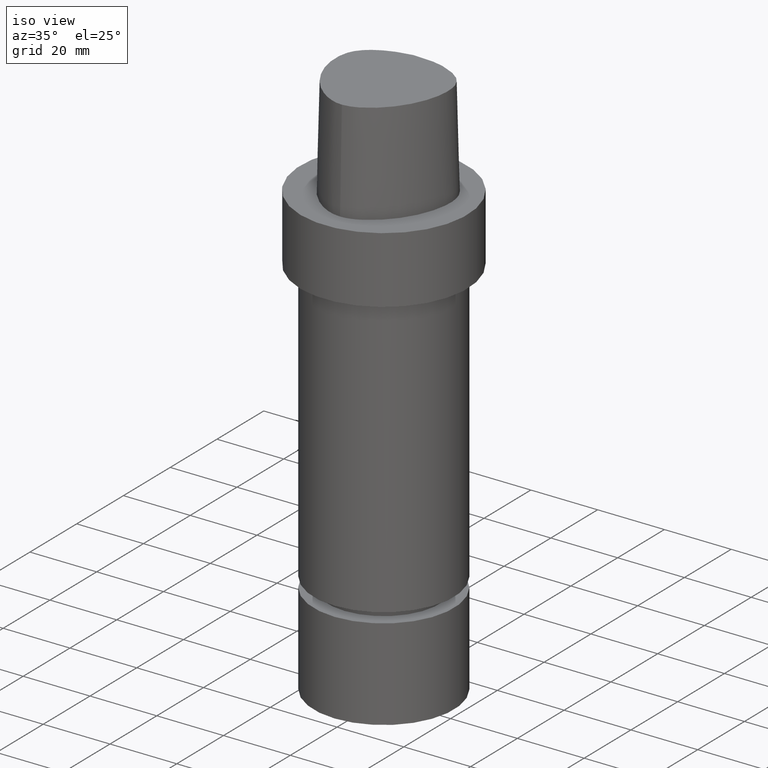
[diagram: clean part render]
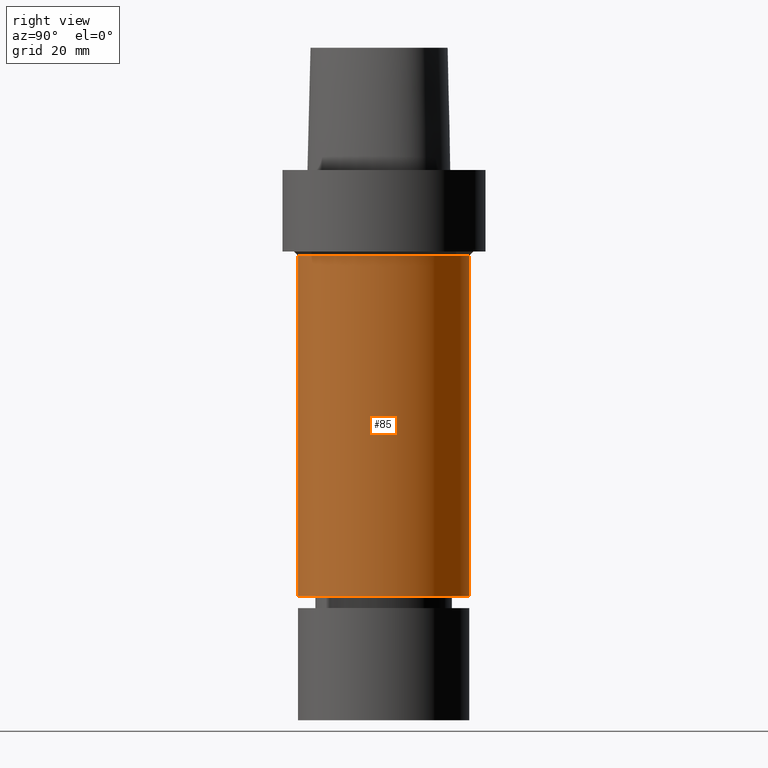
[diagram: tour spotlight — one face highlighted and labeled with its STEP entity id]
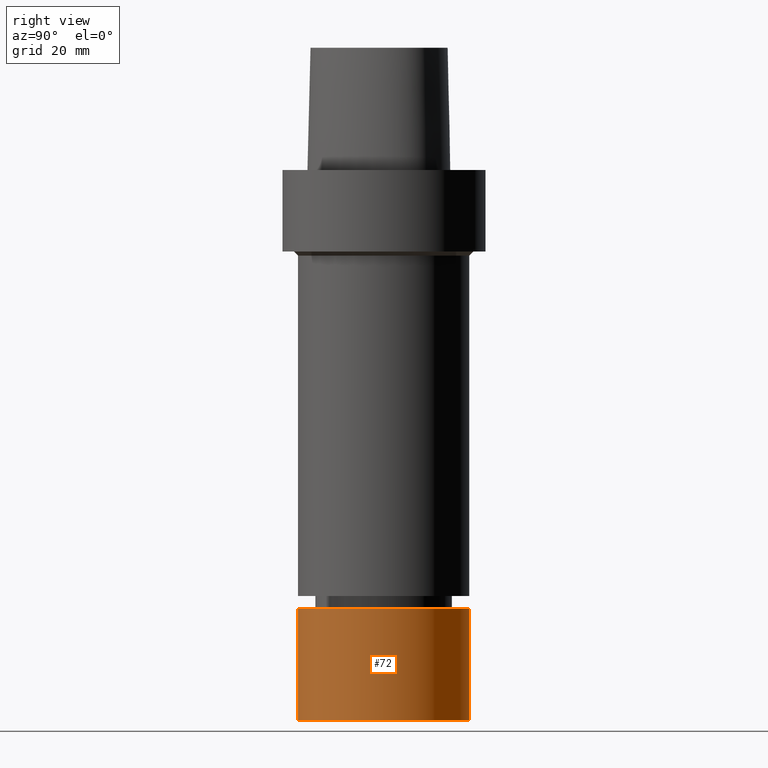
[diagram: tour spotlight — one face highlighted and labeled with its STEP entity id]
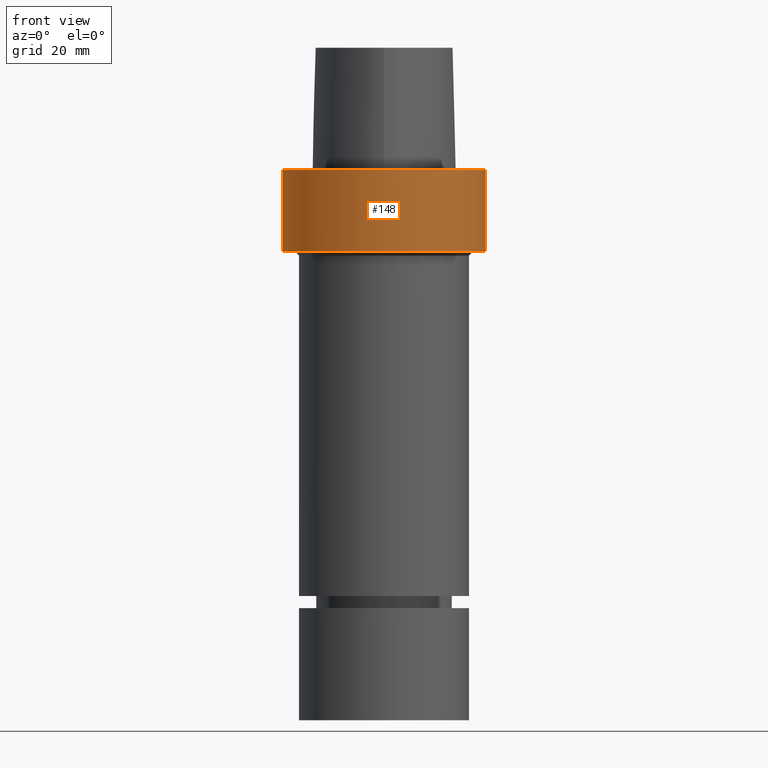
[diagram: tour spotlight — one face highlighted and labeled with its STEP entity id]
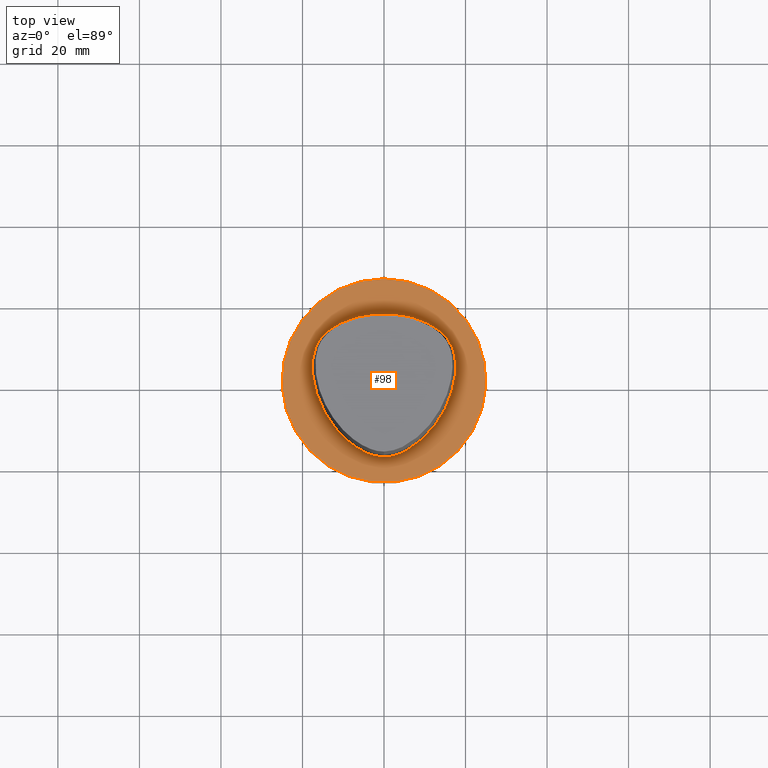
[diagram: tour spotlight — one face highlighted and labeled with its STEP entity id]
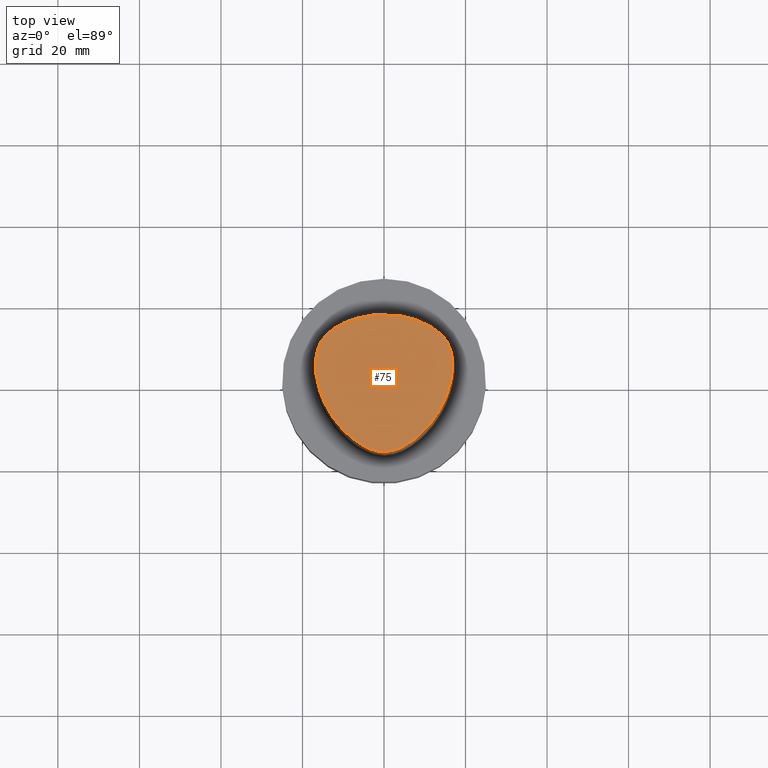
[diagram: tour spotlight — one face highlighted and labeled with its STEP entity id]
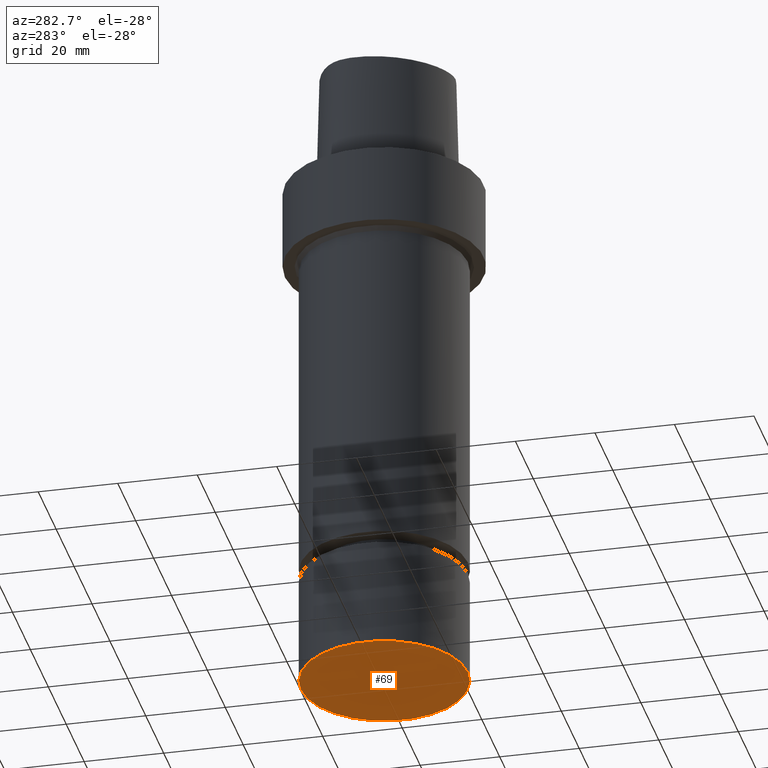
[diagram: tour spotlight — one face highlighted and labeled with its STEP entity id]
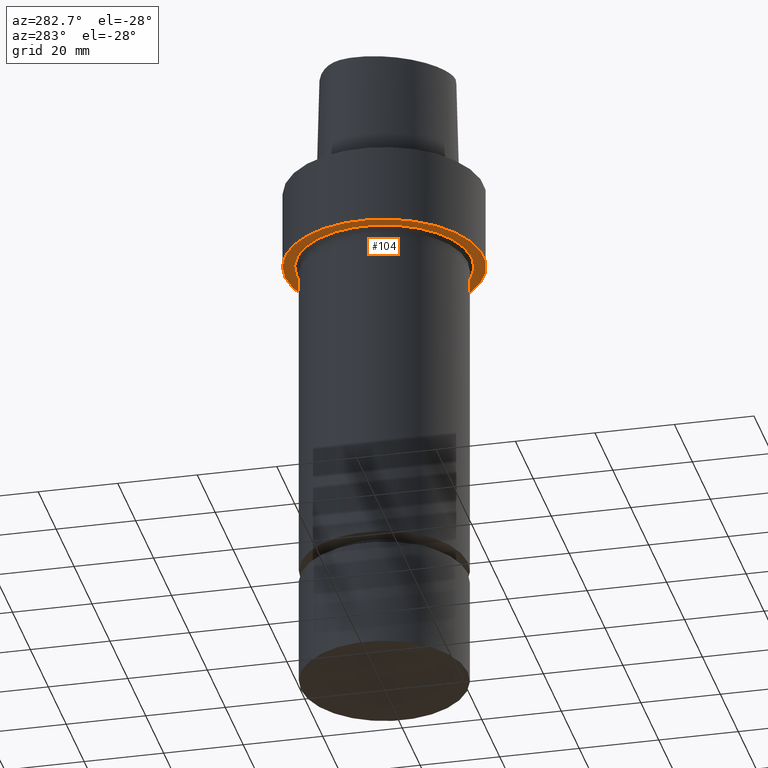
[diagram: tour spotlight — one face highlighted and labeled with its STEP entity id]
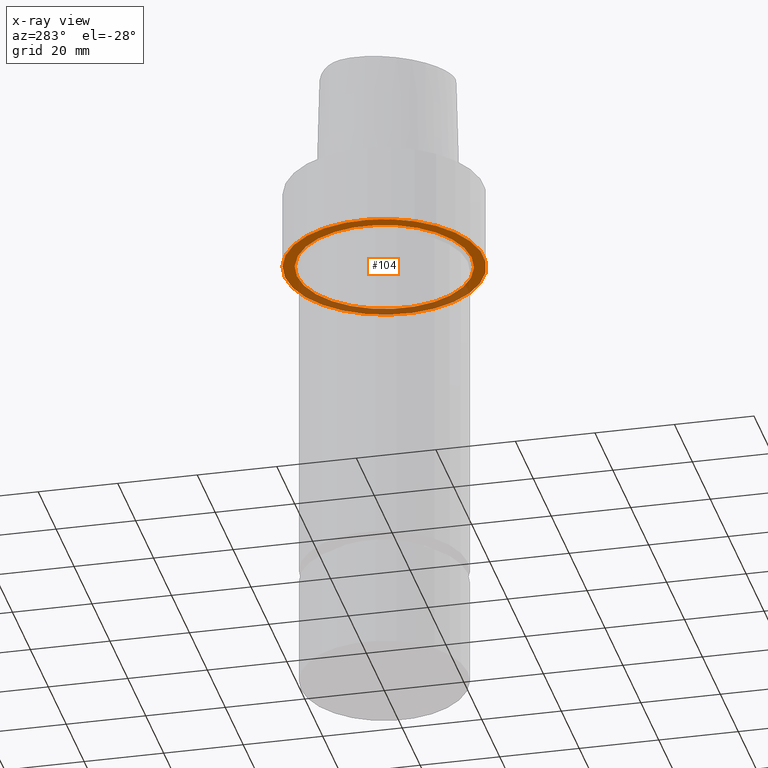
[diagram: x-ray of the same camera — body ghosted, this tour face saturated]
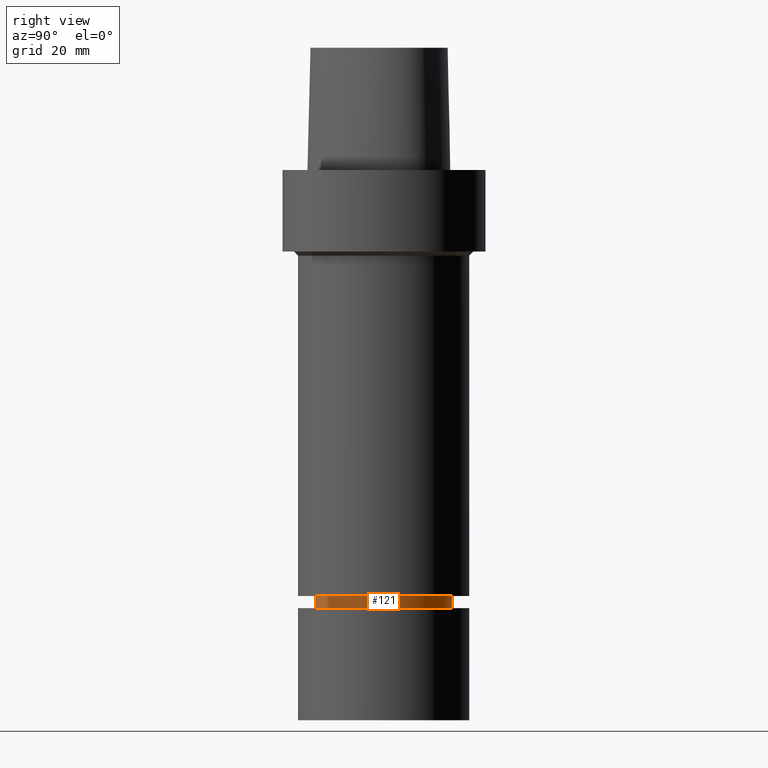
[diagram: tour spotlight — one face highlighted and labeled with its STEP entity id]
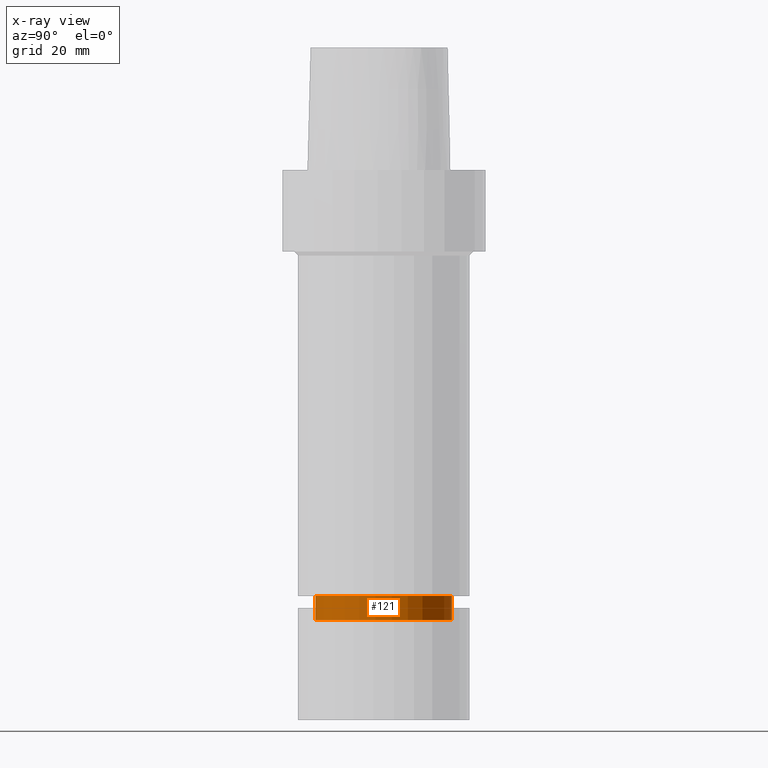
[diagram: x-ray of the same camera — body ghosted, this tour face saturated]
A machine part: a face-by-face anatomy tour. The part has 16 B-rep faces; the first image is the clean iso view, then the 8 largest visible faces are spotlighted one at a time (largest first), each with its STEP entity span.

Face 1 — right view, entity #85. In plain terms, the highlighted cylindrical surface (bore or boss wall) has radius 21 mm, axis along (0, 0, -1).
Definition (entity closure, byte-faithful):
#79=EDGE_CURVE('Unnamed[1]',#188,#188,#189,.T.);
#85=ADVANCED_FACE('Unnamed[1]',(#196,#197),#198,.T.);
#89=EDGE_CURVE('Unnamed[1]',#203,#203,#204,.T.);
#188=VERTEX_POINT('',#330);
#189=CIRCLE('',#331,21.0000000000003);
#196=FACE_BOUND('',#340,.T.);
#197=FACE_BOUND('',#341,.T.);
#198=CYLINDRICAL_SURFACE('',#342,21.0000000000003);
#203=VERTEX_POINT('',#349);
#204=CIRCLE('',#350,21.0000000000003);
#330=CARTESIAN_POINT('',(1.28587913910472E-015,21.0000000000003,-21.0));
#331=AXIS2_PLACEMENT_3D('',#1012,#1013,#1014);
#340=EDGE_LOOP('',(#1021));
#341=EDGE_LOOP('',(#1022));
#342=AXIS2_PLACEMENT_3D('',#1023,#1024,#1025);
#349=CARTESIAN_POINT('',(6.39877952554491E-015,21.0000000000003,-104.5));
#350=AXIS2_PLACEMENT_3D('',#1029,#1030,#1031);
#1012=CARTESIAN_POINT('',(1.28587913910472E-015,2.57175827820944E-015,-21.0));
#1013=DIRECTION('',(6.12323399573677E-017,1.22464679914735E-016,-1.0));
#1014=DIRECTION('',(-1.23259516440783E-032,1.0,1.22464679914735E-016));
#1021=ORIENTED_EDGE('',*,*,#89,.F.);
#1022=ORIENTED_EDGE('',*,*,#79,.T.);
#1023=CARTESIAN_POINT('',(3.84232933232482E-015,7.68465866464963E-015,-62.75));
#1024=DIRECTION('',(6.12323399573677E-017,1.22464679914735E-016,-1.0));
#1025=DIRECTION('',(-1.23259516440783E-032,1.0,1.22464679914735E-016));
#1029=CARTESIAN_POINT('',(6.39877952554491E-015,1.27975590510898E-014,-104.5));
#1030=DIRECTION('',(6.12323399573677E-017,1.22464679914735E-016,-1.0));
#1031=DIRECTION('',(-1.23259516440783E-032,1.0,1.22464679914735E-016));

Face 2 — right view, entity #72. In plain terms, the highlighted cylindrical surface (bore or boss wall) has radius 21 mm, axis along (0, 0, -1).
Definition (entity closure, byte-faithful):
#66=EDGE_CURVE('Unnamed[1]',#169,#169,#170,.T.);
#72=ADVANCED_FACE('Unnamed[1]',(#177,#178),#179,.T.);
#123=EDGE_CURVE('Unnamed[1]',#253,#253,#254,.T.);
#169=VERTEX_POINT('',#306);
#170=CIRCLE('',#307,21.0);
#177=FACE_BOUND('',#316,.T.);
#178=FACE_BOUND('',#317,.T.);
#179=CYLINDRICAL_SURFACE('',#318,21.0);
#253=VERTEX_POINT('',#941);
#254=CIRCLE('',#942,21.0);
#306=CARTESIAN_POINT('',(8.26636589424463E-015,21.0,-135.0));
#307=AXIS2_PLACEMENT_3D('',#990,#991,#992);
#316=EDGE_LOOP('',(#999));
#317=EDGE_LOOP('',(#1000));
#318=AXIS2_PLACEMENT_3D('',#1001,#1002,#1003);
#941=CARTESIAN_POINT('',(6.58247654541702E-015,21.0,-107.5));
#942=AXIS2_PLACEMENT_3D('',#1074,#1075,#1076);
#990=CARTESIAN_POINT('',(8.26636589424463E-015,1.65327317884893E-014,-135.0));
#991=DIRECTION('',(6.12323399573677E-017,1.22464679914735E-016,-1.0));
#992=DIRECTION('',(-1.23259516440783E-032,1.0,1.22464679914735E-016));
#999=ORIENTED_EDGE('',*,*,#66,.F.);
#1000=ORIENTED_EDGE('',*,*,#123,.T.);
#1001=CARTESIAN_POINT('',(7.42442121983083E-015,1.48488424396617E-014,-121.25));
#1002=DIRECTION('',(6.12323399573677E-017,1.22464679914735E-016,-1.0));
#1003=DIRECTION('',(-1.23259516440783E-032,1.0,1.22464679914735E-016));
#1074=CARTESIAN_POINT('',(6.58247654541702E-015,1.3164953090834E-014,-107.5));
#1075=DIRECTION('',(6.12323399573677E-017,1.22464679914735E-016,-1.0));
#1076=DIRECTION('',(-1.23259516440783E-032,1.0,1.22464679914735E-016));

Face 3 — front view, entity #148. In plain terms, the highlighted cylindrical surface (bore or boss wall) has radius 25 mm, axis along (0, 0, -1).
Definition (entity closure, byte-faithful):
#77=EDGE_CURVE('Unnamed[1]',#185,#185,#186,.T.);
#142=EDGE_CURVE('Unnamed[1]',#281,#281,#282,.T.);
#148=ADVANCED_FACE('Unnamed[1]',(#290,#291),#292,.T.);
#185=VERTEX_POINT('',#326);
#186=CIRCLE('',#327,25.0);
#281=VERTEX_POINT('',#975);
#282=CIRCLE('',#976,25.0);
#290=FACE_BOUND('',#986,.T.);
#291=FACE_BOUND('',#987,.T.);
#292=CYLINDRICAL_SURFACE('',#988,25.0);
#326=CARTESIAN_POINT('',(1.22464679914735E-015,25.0,-20.0));
#327=AXIS2_PLACEMENT_3D('',#1009,#1010,#1011);
#975=CARTESIAN_POINT('',(-3.08148791101958E-031,25.0,3.06161699786838E-015));
#976=AXIS2_PLACEMENT_3D('',#1104,#1105,#1106);
#986=EDGE_LOOP('',(#1114));
#987=EDGE_LOOP('',(#1115));
#988=AXIS2_PLACEMENT_3D('',#1116,#1117,#1118);
#1009=CARTESIAN_POINT('',(1.22464679914735E-015,2.44929359829471E-015,-20.0));
#1010=DIRECTION('',(6.12323399573677E-017,1.22464679914735E-016,-1.0));
#1011=DIRECTION('',(-1.23259516440783E-032,1.0,1.22464679914735E-016));
#1104=CARTESIAN_POINT('',(0.0,0.0,0.0));
#1105=DIRECTION('',(6.12323399573677E-017,1.22464679914735E-016,-1.0));
#1106=DIRECTION('',(-1.23259516440783E-032,1.0,1.22464679914735E-016));
#1114=ORIENTED_EDGE('',*,*,#77,.F.);
#1115=ORIENTED_EDGE('',*,*,#142,.T.);
#1116=CARTESIAN_POINT('',(6.12323399573677E-016,1.22464679914735E-015,-10.0));
#1117=DIRECTION('',(6.12323399573677E-017,1.22464679914735E-016,-1.0));
#1118=DIRECTION('',(-1.23259516440783E-032,1.0,1.22464679914735E-016));

Face 4 — top view, entity #98. In plain terms, the highlighted planar face has unit normal (-0, -0, 1).
Definition (entity closure, byte-faithful):
#93=EDGE_CURVE('Unnamed[1]',#209,#209,#210,.T.);
#98=ADVANCED_FACE('Unnamed[1]',(#216,#217),#218,.T.);
#142=EDGE_CURVE('Unnamed[1]',#281,#281,#282,.T.);
#209=VERTEX_POINT('',#357);
#210=B_SPLINE_CURVE_WITH_KNOTS('',3,(#358,#359,#360,#361,#362,#363,#364,#365,#366,#367,#368,#369,#370,#371,#372,#373,#374,#375,#376,#377,#378,#379,#380,#381,#382,#383,#384,#385,#386,#387,#388,#389,#390,#391,#392,#393,#394,#395,#396,#397,#398,#399,#400,#401,#402,#403,#404,#405,#406,#407,#408,#409,#410,#411,#412,#413,#414,#415,#416,#417,#418,#419,#420,#421,#422,#423,#424,#425,#426,#427,#428,#429,#430,#431,#432,#433,#434,#435,#436,#437,#438,#439,#440,#441,#442,#443,#444,#445,#446,#447,#448,#449,#450,#451,#452,#453),.UNSPECIFIED.,.T.,.F.,(4,2,2,2,2,2,2,2,2,2,2,2,2,2,2,2,2,2,2,2,2,2,2,2,2,2,2,2,2,2,2,2,2,2,2,2,2,2,2,2,2,2,2,2,2,2,2,4),(0.0,0.000251979175567,0.023135829350767,0.046149078767971,0.068686553945372,0.09058948843834,0.11187442371895,0.132659030725504,0.153111474090064,0.173428097006866,0.193812703683075,0.214465113334926,0.235566638619369,0.257256396596226,0.279590584305387,0.302476275092963,0.325611612149197,0.348735785989546,0.371826971229282,0.39455923139207,0.416669726533691,0.438154204641074,0.459103554741756,0.479643077908811,0.50010643098029,0.520399705216369,0.54092682403315,0.561890845659905,0.583370991138857,0.605476574502583,0.62820876493626,0.65131550684809,0.674427687768046,0.697531018602722,0.720425222070344,0.742763449220249,0.764449723968905,0.785551037463572,0.806204240231889,0.826588983931571,0.846905402970388,0.867357715119018,0.88814171778586,0.909429413217286,0.931324749020081,0.953885589892717,0.976862732393428,1.0),.UNSPECIFIED.);
#216=FACE_BOUND('',#464,.T.);
#217=FACE_OUTER_BOUND('',#465,.T.);
#218=PLANE('',#466);
#281=VERTEX_POINT('',#975);
#282=CIRCLE('',#976,25.0);
#357=CARTESIAN_POINT('',(-0.00144332333831829,-18.693734925237,1.58949405722709E-031));
#358=CARTESIAN_POINT('',(-0.00144332333831829,-18.693734925237,1.58949405722709E-031));
#359=CARTESIAN_POINT('',(-0.0107097733408023,-18.6937739851458,1.18444691579815E-031));
#360=CARTESIAN_POINT('',(-0.0199759398304303,-18.6937986220233,1.90667064494336E-031));
#361=CARTESIAN_POINT('',(-0.87073259155424,-18.6947332287258,-2.46519032881566E-032));
#362=CARTESIAN_POINT('',(-1.7132146687811,-18.5561236138986,-1.72563323017096E-031));
#363=CARTESIAN_POINT('',(-3.34678034951543,-18.1076178270182,1.23259516440783E-031));
#364=CARTESIAN_POINT('',(-4.13763295357352,-17.7966649911857,0.0));
#365=CARTESIAN_POINT('',(-5.64401230436313,-17.0611782657116,-1.4791141972894E-031));
#366=CARTESIAN_POINT('',(-6.36074874666199,-16.6390568826018,9.86076131526265E-032));
#367=CARTESIAN_POINT('',(-7.71193183747336,-15.717785465073,-9.86076131526265E-032));
#368=CARTESIAN_POINT('',(-8.34816817062737,-15.221133209089,-1.97215226305253E-031));
#369=CARTESIAN_POINT('',(-9.54864267958622,-14.1801662707339,0.0));
#370=CARTESIAN_POINT('',(-10.1143778244459,-13.6375391489888,-9.86076131526265E-032));
#371=CARTESIAN_POINT('',(-11.1785439970871,-12.5139706700162,-9.86076131526265E-032));
#372=CARTESIAN_POINT('',(-11.6782474581115,-11.9342299113078,0.0));
#373=CARTESIAN_POINT('',(-12.6162342990191,-10.7421055435185,-1.97215226305253E-031));
#374=CARTESIAN_POINT('',(-13.055371557502,-10.1303892417647,0.0));
#375=CARTESIAN_POINT('',(-13.8770457728377,-8.87590863790404,9.86076131526265E-032));
#376=CARTESIAN_POINT('',(-14.2599388402702,-8.2333768267112,-9.86076131526265E-032));
#377=CARTESIAN_POINT('',(-14.97168833234,-6.91623888397976,1.97215226305253E-031));
#378=CARTESIAN_POINT('',(-15.3003608122286,-6.24153310972228,0.0));
#379=CARTESIAN_POINT('',(-15.9019181796067,-4.85709547419161,0.0));
#380=CARTESIAN_POINT('',(-16.1740130050164,-4.14701882283056,1.97215226305253E-031));
#381=CARTESIAN_POINT('',(-16.6580397097976,-2.68928374551173,0.0));
#382=CARTESIAN_POINT('',(-16.8685476043865,-1.9411430240201,0.0));
#383=CARTESIAN_POINT('',(-17.2177110849312,-0.406254182783721,0.0));
#384=CARTESIAN_POINT('',(-17.3541927925624,0.380994664903646,0.0));
#385=CARTESIAN_POINT('',(-17.5416073974851,1.99022033864964,0.0));
#386=CARTESIAN_POINT('',(-17.5899626525416,2.81255460248461,0.0));
#387=CARTESIAN_POINT('',(-17.563584952533,4.47617713465644,0.0));
#388=CARTESIAN_POINT('',(-17.4857707493695,5.31746225938347,0.0));
#389=CARTESIAN_POINT('',(-17.1712152948197,6.98496502795616,0.0));
#390=CARTESIAN_POINT('',(-16.932846471387,7.81104073212088,0.0));
#391=CARTESIAN_POINT('',(-16.2234989303146,9.36022258130064,0.0));
#392=CARTESIAN_POINT('',(-15.7525288634429,10.0833544868442,0.0));
#393=CARTESIAN_POINT('',(-14.6462939775209,11.3794173305263,0.0));
#394=CARTESIAN_POINT('',(-14.0112703709932,11.9525998966018,0.0));
#395=CARTESIAN_POINT('',(-12.6649577858213,12.9708269345166,0.0));
#396=CARTESIAN_POINT('',(-11.9549187103733,13.4176956956896,9.86076131526265E-032));
#397=CARTESIAN_POINT('',(-10.5004911910335,14.1970175551563,0.0));
#398=CARTESIAN_POINT('',(-9.7575533569854,14.5322819629711,-9.86076131526265E-032));
#399=CARTESIAN_POINT('',(-8.26254539063019,15.1133265717584,-9.86076131526265E-032));
#400=CARTESIAN_POINT('',(-7.51128946075537,15.3613193072948,-9.86076131526265E-032));
#401=CARTESIAN_POINT('',(-6.00522655029125,15.7739014771636,0.0));
#402=CARTESIAN_POINT('',(-5.25098149060303,15.940365829473,4.93038065763132E-032));
#403=CARTESIAN_POINT('',(-3.74452370137136,16.1783002530882,4.93038065763132E-032));
#404=CARTESIAN_POINT('',(-2.9925639102356,16.2517640462219,-1.97215226305253E-031));
#405=CARTESIAN_POINT('',(-1.48914620895443,16.3898646921674,-1.84889274661175E-031));
#406=CARTESIAN_POINT('',(-0.737689844422075,16.454322887119,1.84889274661175E-031));
#407=CARTESIAN_POINT('',(0.759326987696435,16.4536103338567,6.77927340424307E-032));
#408=CARTESIAN_POINT('',(1.50487089700432,16.3916719627081,-1.97215226305253E-031));
#409=CARTESIAN_POINT('',(3.00152605278829,16.2529050894156,-7.39557098644699E-032));
#410=CARTESIAN_POINT('',(3.75259609178933,16.1756990011092,-9.86076131526265E-032));
#411=CARTESIAN_POINT('',(5.25866006360267,15.9348272624441,-1.4791141972894E-031));
#412=CARTESIAN_POINT('',(6.01339669607053,15.7693347335975,1.4791141972894E-031));
#413=CARTESIAN_POINT('',(7.52174791015443,15.3636385273713,0.0));
#414=CARTESIAN_POINT('',(8.27488011859475,15.1217203315759,0.0));
#415=CARTESIAN_POINT('',(9.77128987676661,14.5452319544132,9.86076131526265E-032));
#416=CARTESIAN_POINT('',(10.5136604457977,14.20816965576,0.0));
#417=CARTESIAN_POINT('',(11.9637825858721,13.4211978486476,-9.86076131526265E-032));
#418=CARTESIAN_POINT('',(12.6699581239128,12.9683397391863,1.97215226305253E-031));
#419=CARTESIAN_POINT('',(14.0107896940302,11.9417697294217,0.0));
#420=CARTESIAN_POINT('',(14.6441161661191,11.3662092641098,0.0));
#421=CARTESIAN_POINT('',(15.7473444143777,10.0678607932392,-1.97215226305253E-031));
#422=CARTESIAN_POINT('',(16.2172279070315,9.34515014826243,0.0));
#423=CARTESIAN_POINT('',(16.9299748942786,7.79911649806176,-1.97215226305253E-031));
#424=CARTESIAN_POINT('',(17.1732678868715,6.97591096726165,0.0));
#425=CARTESIAN_POINT('',(17.4947165291087,5.31078187777496,0.0));
#426=CARTESIAN_POINT('',(17.5742122859752,4.46891080588121,0.0));
#427=CARTESIAN_POINT('',(17.5984503582426,2.80469955056706,0.0));
#428=CARTESIAN_POINT('',(17.5464797751086,1.98232636532396,0.0));
#429=CARTESIAN_POINT('',(17.3530324455179,0.373802434650424,0.0));
#430=CARTESIAN_POINT('',(17.2140873477037,-0.412741037255912,0.0));
#431=CARTESIAN_POINT('',(16.8640679933744,-1.94732109648072,0.0));
#432=CARTESIAN_POINT('',(16.6550051401061,-2.69581759912329,0.0));
#433=CARTESIAN_POINT('',(16.1721668251879,-4.15391144824405,0.0));
#434=CARTESIAN_POINT('',(15.8998720313717,-4.86400476772738,0.0));
#435=CARTESIAN_POINT('',(15.2976461182969,-6.24821889850589,0.0));
#436=CARTESIAN_POINT('',(14.9685089040774,-6.9226902547916,0.0));
#437=CARTESIAN_POINT('',(14.2562315235154,-8.23953226144279,0.0));
#438=CARTESIAN_POINT('',(13.8732695848357,-8.88199998589755,0.0));
#439=CARTESIAN_POINT('',(13.0515094984057,-10.1364217212122,0.0));
#440=CARTESIAN_POINT('',(12.612354568037,-10.7481421677501,0.0));
#441=CARTESIAN_POINT('',(11.6737441165097,-11.9397215871539,0.0));
#442=CARTESIAN_POINT('',(11.1734254860308,-12.5189032007719,0.0));
#443=CARTESIAN_POINT('',(10.1074745701417,-13.640998338336,-9.86076131526265E-032));
#444=CARTESIAN_POINT('',(9.54055189248609,-14.182694679151,0.0));
#445=CARTESIAN_POINT('',(8.33747886858352,-15.2200706351975,-9.86076131526265E-032));
#446=CARTESIAN_POINT('',(7.69981598148188,-15.7139994399403,0.0));
#447=CARTESIAN_POINT('',(6.35130494327661,-16.6404483507205,-4.93038065763132E-032));
#448=CARTESIAN_POINT('',(5.6388427285293,-17.0707143827691,-9.86076131526265E-032));
#449=CARTESIAN_POINT('',(4.1368842572046,-17.8149844980219,-9.86076131526265E-032));
#450=CARTESIAN_POINT('',(3.3461818724523,-18.1267181400899,2.46519032881566E-032));
#451=CARTESIAN_POINT('',(1.70267749900168,-18.5649567925168,1.72563323017096E-031));
#452=CARTESIAN_POINT('',(0.849421963398066,-18.6901483607448,0.0));
#453=CARTESIAN_POINT('',(-0.00144332333831829,-18.693734925237,1.58949405722709E-031));
#464=EDGE_LOOP('',(#1036));
#465=EDGE_LOOP('',(#1037));
#466=AXIS2_PLACEMENT_3D('',#1038,#1039,#1040);
#975=CARTESIAN_POINT('',(-3.08148791101958E-031,25.0,3.06161699786838E-015));
#976=AXIS2_PLACEMENT_3D('',#1104,#1105,#1106);
#1036=ORIENTED_EDGE('',*,*,#93,.T.);
#1037=ORIENTED_EDGE('',*,*,#142,.F.);
#1038=CARTESIAN_POINT('',(-4.53039096752276E-032,12.5,-2.45548340466059E-016));
#1039=DIRECTION('',(-6.12323399573677E-017,-2.64573227066755E-016,1.0));
#1040=DIRECTION('',(2.10275905141384E-032,-1.0,-2.64573227066755E-016));
#1104=CARTESIAN_POINT('',(0.0,0.0,0.0));
#1105=DIRECTION('',(6.12323399573677E-017,1.22464679914735E-016,-1.0));
#1106=DIRECTION('',(-1.23259516440783E-032,1.0,1.22464679914735E-016));

Face 5 — top view, entity #75. In plain terms, the highlighted planar face has unit normal (-0, 0, 1).
Definition (entity closure, byte-faithful):
#75=ADVANCED_FACE('Unnamed[1]',(#182),#183,.T.);
#111=EDGE_CURVE('Unnamed[1]',#212,#212,#237,.T.);
#182=FACE_OUTER_BOUND('',#322,.T.);
#183=PLANE('',#323);
#212=VERTEX_POINT('',#456);
#237=B_SPLINE_CURVE_WITH_KNOTS('',3,(#873,#874,#875,#876,#877,#878,#879,#880,#881,#882,#883,#884,#885,#886,#887,#888,#889,#890,#891,#892,#893,#894,#895,#896,#897,#898,#899,#900,#901,#902,#903,#904,#905,#906,#907,#908,#909,#910,#911,#912,#913,#914,#915,#916,#917,#918,#919,#920,#921),.UNSPECIFIED.,.T.,.F.,(4,1,1,1,1,1,1,1,1,1,1,1,1,1,1,1,1,1,1,1,1,1,1,1,1,1,1,1,1,1,1,1,1,1,1,1,1,1,1,1,1,1,1,1,1,1,4),(0.0,0.023135829350767,0.046149078767971,0.068686553945372,0.09058948843834,0.11187442371895,0.132659030725504,0.153111474090064,0.173428097006866,0.193812703683075,0.214465113334926,0.235566638619369,0.257256396596226,0.279590584305387,0.302476275092963,0.325611612149197,0.348735785989546,0.371826971229282,0.39455923139207,0.416669726533691,0.438154204641074,0.459103554741756,0.479643077908811,0.50010643098029,0.520399705216369,0.54092682403315,0.561890845659905,0.583370991138857,0.605476574502583,0.62820876493626,0.65131550684809,0.674427687768046,0.697531018602722,0.720425222070344,0.742763449220249,0.764449723968905,0.785551037463572,0.806204240231889,0.826588983931571,0.846905402970388,0.867357715119018,0.88814171778586,0.909429413217286,0.931324749020081,0.953885589892717,0.976862732393428,1.0),.UNSPECIFIED.);
#322=EDGE_LOOP('',(#1005));
#323=AXIS2_PLACEMENT_3D('',#1006,#1007,#1008);
#456=CARTESIAN_POINT('',(-2.78602932413959E-015,-17.9423775546504,30.0));
#873=CARTESIAN_POINT('',(-2.78602932413959E-015,-17.9423775546504,30.0));
#874=CARTESIAN_POINT('',(-0.814120797978075,-17.9643878187761,30.0));
#875=CARTESIAN_POINT('',(-2.44279318309434,-17.6670056599032,30.0));
#876=CARTESIAN_POINT('',(-4.69065600148019,-16.7591312239375,30.0));
#877=CARTESIAN_POINT('',(-6.73157621234646,-15.527654017863,30.0));
#878=CARTESIAN_POINT('',(-8.55606567082544,-14.0980586872352,30.0));
#879=CARTESIAN_POINT('',(-10.1771160862307,-12.5294920614813,30.0));
#880=CARTESIAN_POINT('',(-11.6098311271326,-10.8549672983455,30.0));
#881=CARTESIAN_POINT('',(-12.8723444784573,-9.09084166630711,30.0));
#882=CARTESIAN_POINT('',(-13.9762474627415,-7.23982146073079,30.0));
#883=CARTESIAN_POINT('',(-14.9241349859217,-5.29636298798721,30.0));
#884=CARTESIAN_POINT('',(-15.7132736469777,-3.2533357158659,30.0));
#885=CARTESIAN_POINT('',(-16.3266313043064,-1.10238675181427,30.0));
#886=CARTESIAN_POINT('',(-16.7327867713303,1.15808256309649,30.0));
#887=CARTESIAN_POINT('',(-16.8801613787167,3.51564121263174,30.0));
#888=CARTESIAN_POINT('',(-16.6855836228514,5.92229128835704,30.0));
#889=CARTESIAN_POINT('',(-16.0281509658443,8.29517868854449,30.0));
#890=CARTESIAN_POINT('',(-14.6640408300166,10.3669104243273,30.0));
#891=CARTESIAN_POINT('',(-12.8332969997264,11.9882678763451,30.0));
#892=CARTESIAN_POINT('',(-10.7856401290832,13.2404482750702,30.0));
#893=CARTESIAN_POINT('',(-8.65298741417579,14.19764142693,30.0));
#894=CARTESIAN_POINT('',(-6.48957622042645,14.9235651413533,30.0));
#895=CARTESIAN_POINT('',(-4.30784954842127,15.2925809723717,30.0));
#896=CARTESIAN_POINT('',(-2.16867899857279,15.8525920055235,30.0));
#897=CARTESIAN_POINT('',(-0.0054980597270801,15.506533819507,30.0));
#898=CARTESIAN_POINT('',(2.15423811148254,15.6758925558313,30.0));
#899=CARTESIAN_POINT('',(4.31367631773855,15.3366483013887,30.0));
#900=CARTESIAN_POINT('',(6.49156913463884,14.9221231752341,30.0));
#901=CARTESIAN_POINT('',(8.65317555043793,14.199841033848,30.0));
#902=CARTESIAN_POINT('',(10.7855591317115,13.2388028674922,30.0));
#903=CARTESIAN_POINT('',(12.8289446834375,11.9844078416963,30.0));
#904=CARTESIAN_POINT('',(14.6809214389867,10.37934328945,30.0));
#905=CARTESIAN_POINT('',(15.9964040236072,8.28000660116028,30.0));
#906=CARTESIAN_POINT('',(16.6999197177274,5.92601467018833,30.0));
#907=CARTESIAN_POINT('',(16.8785470495877,3.51485696104406,30.0));
#908=CARTESIAN_POINT('',(16.7308989568545,1.15864914401017,30.0));
#909=CARTESIAN_POINT('',(16.3270119409732,-1.10262794482627,30.0));
#910=CARTESIAN_POINT('',(15.7138840293007,-3.25349612648562,30.0));
#911=CARTESIAN_POINT('',(14.9244427410538,-5.29647704660135,30.0));
#912=CARTESIAN_POINT('',(13.9756636589241,-7.23950698099948,30.0));
#913=CARTESIAN_POINT('',(12.8724663956831,-9.09088034657936,30.0));
#914=CARTESIAN_POINT('',(11.6099597844916,-10.8551381410581,30.0));
#915=CARTESIAN_POINT('',(10.1759690661341,-12.5282962499649,30.0));
#916=CARTESIAN_POINT('',(8.55887653552809,-14.1013446755591,30.0));
#917=CARTESIAN_POINT('',(6.72595297076831,-15.5205541881092,30.0));
#918=CARTESIAN_POINT('',(4.69995925068727,-16.7729025475684,30.0));
#919=CARTESIAN_POINT('',(2.43523789305481,-17.660279021922,30.0));
#920=CARTESIAN_POINT('',(0.814171408394767,-17.9203659222405,30.0));
#921=CARTESIAN_POINT('',(-2.83508942413959E-015,-17.9423775546504,30.0));
#1005=ORIENTED_EDGE('',*,*,#111,.F.);
#1006=CARTESIAN_POINT('',(-0.000657534264248203,-1.65575572608802,30.0));
#1007=DIRECTION('',(-0.0,2.95577857036584E-049,1.0));
#1008=DIRECTION('',(1.0,0.0,0.0));

Face 6 — auxiliary view, entity #69. In plain terms, the highlighted planar face has unit normal (0, 0, -1).
Definition (entity closure, byte-faithful):
#66=EDGE_CURVE('Unnamed[1]',#169,#169,#170,.T.);
#69=ADVANCED_FACE('Unnamed[1]',(#173),#174,.T.);
#169=VERTEX_POINT('',#306);
#170=CIRCLE('',#307,21.0);
#173=FACE_OUTER_BOUND('',#311,.T.);
#174=PLANE('',#312);
#306=CARTESIAN_POINT('',(8.26636589424463E-015,21.0,-135.0));
#307=AXIS2_PLACEMENT_3D('',#990,#991,#992);
#311=EDGE_LOOP('',(#994));
#312=AXIS2_PLACEMENT_3D('',#995,#996,#997);
#990=CARTESIAN_POINT('',(8.26636589424463E-015,1.65327317884893E-014,-135.0));
#991=DIRECTION('',(6.12323399573677E-017,1.22464679914735E-016,-1.0));
#992=DIRECTION('',(-1.23259516440783E-032,1.0,1.22464679914735E-016));
#994=ORIENTED_EDGE('',*,*,#66,.T.);
#995=CARTESIAN_POINT('',(8.26636589424463E-015,10.5,-135.0));
#996=DIRECTION('',(6.12323399573677E-017,1.22464679914735E-016,-1.0));
#997=DIRECTION('',(-1.23259516440783E-032,1.0,1.22464679914735E-016));

Face 7 — auxiliary view, entity #104. An x-ray twin of the same camera follows (body ghosted, this face saturated) — the face is partly hidden behind the body. In plain terms, the highlighted planar face has unit normal (0, 0, -1).
Definition (entity closure, byte-faithful):
#77=EDGE_CURVE('Unnamed[1]',#185,#185,#186,.T.);
#104=ADVANCED_FACE('Unnamed[1]',(#226,#227),#228,.T.);
#106=EDGE_CURVE('Unnamed[1]',#230,#230,#231,.T.);
#185=VERTEX_POINT('',#326);
#186=CIRCLE('',#327,25.0);
#226=FACE_BOUND('',#476,.T.);
#227=FACE_OUTER_BOUND('',#477,.T.);
#228=PLANE('',#478);
#230=VERTEX_POINT('',#481);
#231=CIRCLE('',#482,22.0000000000003);
#326=CARTESIAN_POINT('',(1.22464679914735E-015,25.0,-20.0));
#327=AXIS2_PLACEMENT_3D('',#1009,#1010,#1011);
#476=EDGE_LOOP('',(#1048));
#477=EDGE_LOOP('',(#1049));
#478=AXIS2_PLACEMENT_3D('',#1050,#1051,#1052);
#481=CARTESIAN_POINT('',(1.22464679914735E-015,22.0000000000003,-20.0));
#482=AXIS2_PLACEMENT_3D('',#1053,#1054,#1055);
#1009=CARTESIAN_POINT('',(1.22464679914735E-015,2.44929359829471E-015,-20.0));
#1010=DIRECTION('',(6.12323399573677E-017,1.22464679914735E-016,-1.0));
#1011=DIRECTION('',(-1.23259516440783E-032,1.0,1.22464679914735E-016));
#1048=ORIENTED_EDGE('',*,*,#106,.F.);
#1049=ORIENTED_EDGE('',*,*,#77,.T.);
#1050=CARTESIAN_POINT('',(1.22464679914735E-015,23.5000000000002,-20.0));
#1051=DIRECTION('',(6.12323399573677E-017,1.22464679914735E-016,-1.0));
#1052=DIRECTION('',(-1.23259516440783E-032,1.0,1.22464679914735E-016));
#1053=CARTESIAN_POINT('',(1.22464679914735E-015,2.44929359829471E-015,-20.0));
#1054=DIRECTION('',(6.12323399573677E-017,1.22464679914735E-016,-1.0));
#1055=DIRECTION('',(-1.23259516440783E-032,1.0,1.22464679914735E-016));

Face 8 — right view, entity #121. An x-ray twin of the same camera follows (body ghosted, this face saturated) — the face is partly hidden behind the body. In plain terms, the highlighted cylindrical surface (bore or boss wall) has radius 16.75 mm, axis along (0, 0, -1).
Definition (entity closure, byte-faithful):
#87=EDGE_CURVE('Unnamed[1]',#200,#200,#201,.T.);
#118=EDGE_CURVE('Unnamed[1]',#245,#245,#246,.T.);
#121=ADVANCED_FACE('Unnamed[1]',(#249,#250),#251,.T.);
#200=VERTEX_POINT('',#345);
#201=CIRCLE('',#346,16.7499999999907);
#245=VERTEX_POINT('',#931);
#246=CIRCLE('',#932,16.7500000000017);
#249=FACE_BOUND('',#936,.T.);
#250=FACE_BOUND('',#937,.T.);
#251=CYLINDRICAL_SURFACE('',#938,16.7499999999962);
#345=CARTESIAN_POINT('',(6.39877952554487E-015,16.7499999999907,-104.499999999999));
#346=AXIS2_PLACEMENT_3D('',#1026,#1027,#1028);
#931=CARTESIAN_POINT('',(6.7641727903392E-015,16.7500000000017,-110.467324865401));
#932=AXIS2_PLACEMENT_3D('',#1065,#1066,#1067);
#936=EDGE_LOOP('',(#1069));
#937=EDGE_LOOP('',(#1070));
#938=AXIS2_PLACEMENT_3D('',#1071,#1072,#1073);
#1026=CARTESIAN_POINT('',(6.39877952554487E-015,1.27975590510897E-014,-104.499999999999));
#1027=DIRECTION('',(6.12323399573677E-017,1.22464679914735E-016,-1.0));
#1028=DIRECTION('',(-1.23259516440783E-032,1.0,1.22464679914735E-016));
#1065=CARTESIAN_POINT('',(6.7641727903392E-015,1.35283455806784E-014,-110.467324865401));
#1066=DIRECTION('',(6.12323399573677E-017,1.22464679914735E-016,-1.0));
#1067=DIRECTION('',(-1.23259516440783E-032,1.0,1.22464679914735E-016));
#1069=ORIENTED_EDGE('',*,*,#118,.F.);
#1070=ORIENTED_EDGE('',*,*,#87,.T.);
#1071=CARTESIAN_POINT('',(6.58147615794204E-015,1.31629523158841E-014,-107.4836624327));
#1072=DIRECTION('',(6.12323399573676E-017,1.22464679914735E-016,-1.0));
#1073=DIRECTION('',(-1.23259516440783E-032,1.0,1.22464679914735E-016));